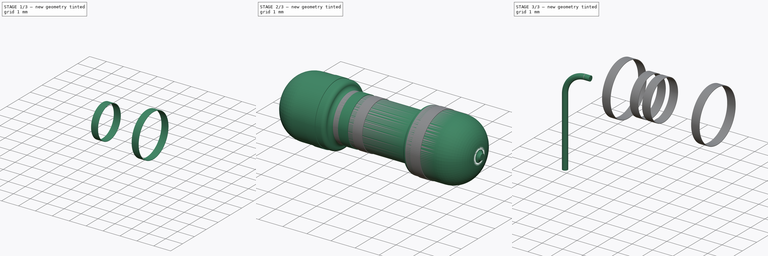
[diagram: build sequence overview — one tinted view per stage of 3, left to right]
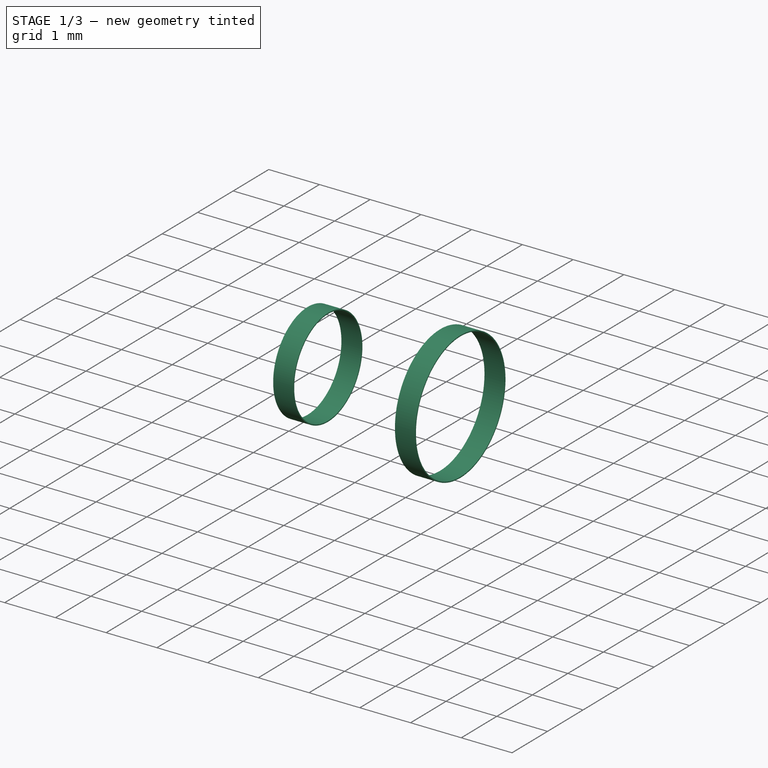
[diagram: stage 1 of 3 — iso view after this stage's code; geometry added in this stage tinted green]
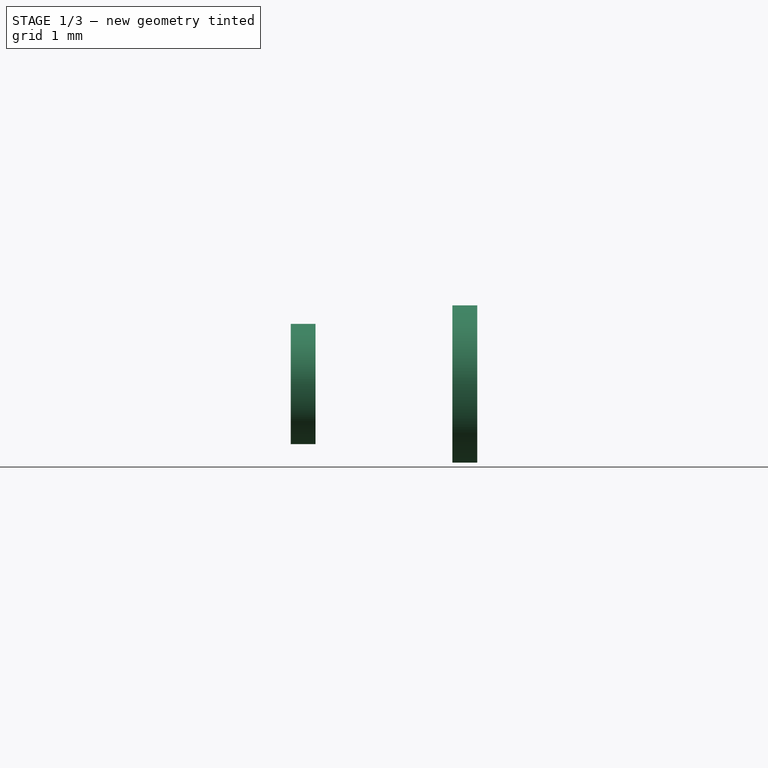
[diagram: stage 1 of 3 — front view after this stage's code; geometry added in this stage tinted green]
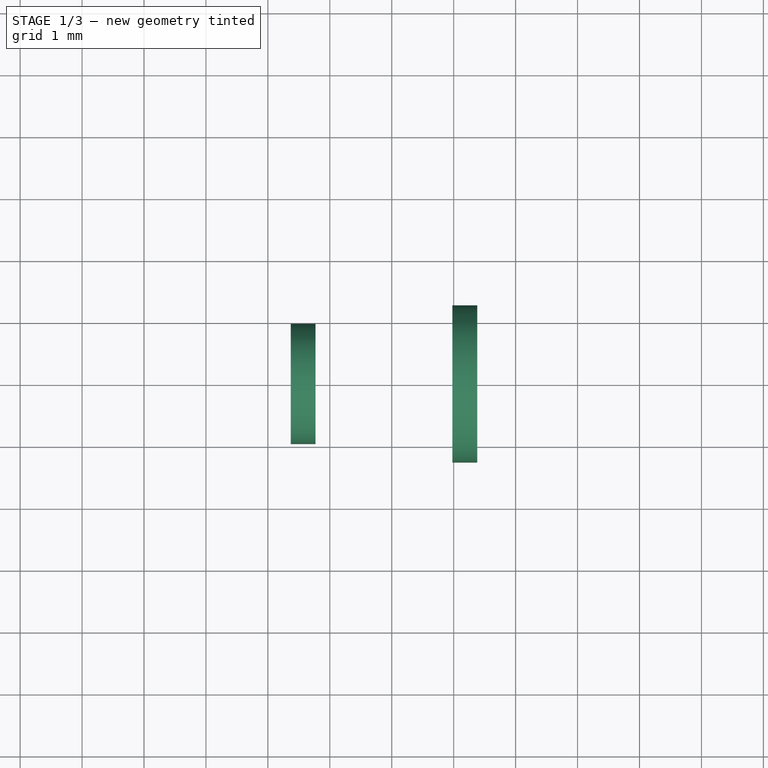
[diagram: stage 1 of 3 — top view after this stage's code; geometry added in this stage tinted green]
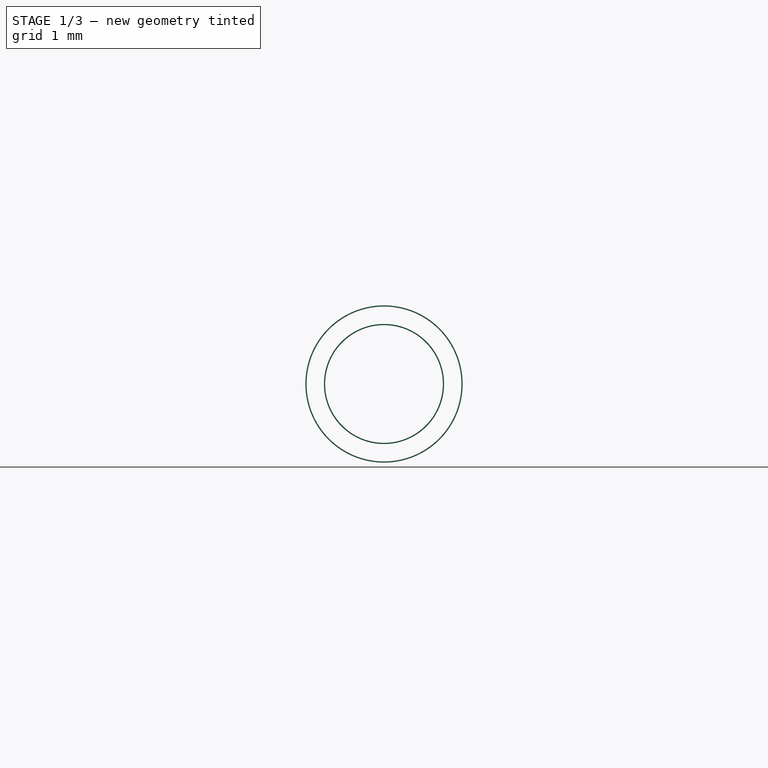
[diagram: stage 1 of 3 — right view after this stage's code; geometry added in this stage tinted green]
FCSTD DOCUMENT  (FreeCAD 0.18.1R)
Label: resistor_01
License: All rights reserved
LicenseURL: http://en.wikipedia.org/wiki/All_rights_reserved
objects: Sketcher::SketchObject×7, PartDesign::Body×7, PartDesign::Revolution×5, PartDesign::ShapeBinder×2, Spreadsheet::Sheet×1, PartDesign::Plane×1, PartDesign::AdditivePipe×1, Part::Mirroring×1
note: 30 computed .brp shape members not serialized (recipe doc carries the construction recipe); baked Part::Feature solids carry a one-line shape summary decoded from their .brp

FEATURE [PartDesign::Body] Body004
  Group = -> [Sketch004,Revolution002]
  Origin = -> Origin004
  Tip = -> Revolution002
FEATURE [Sketcher::SketchObject] Sketch005
  MapMode = 5
  Placement = pos=(0,0,0) rot=(1,0,0;1.5708rad)
  Support = -> [XZ_Plane005]
  expr: Constraints[22] = Spreadsheet.resistor_width / 2 - 3.25mm
  expr: Constraints[18] = Spreadsheet.resistor_dia / 2 - 0.15mm - 0.15mm
  sketch-geometry (8):
    g0: LineSegment StartX=-0.63 StartY=0.97 StartZ=0 EndX=-0.23 EndY=0.97 EndZ=0
    g1: LineSegment StartX=-0.23 StartY=0.97 StartZ=0 EndX=-0.23 EndY=0.95 EndZ=0
    g2: LineSegment StartX=-0.23 StartY=0.95 StartZ=0 EndX=-0.63 EndY=0.95 EndZ=0
    g3: LineSegment StartX=-0.63 StartY=0.95 StartZ=0 EndX=-0.63 EndY=0.97 EndZ=0
    g4: LineSegment [constr] StartX=-1.83 StartY=0.97 StartZ=0 EndX=-0.63 EndY=0.97 EndZ=0
    g5: LineSegment [constr] StartX=-0.63 StartY=0.97 StartZ=0 EndX=-0.63 EndY=0.95 EndZ=0
    g6: LineSegment [constr] StartX=-0.63 StartY=0.95 StartZ=0 EndX=-1.83 EndY=0.95 EndZ=0
    g7: LineSegment [constr] StartX=-1.83 StartY=0.95 StartZ=0 EndX=-1.83 EndY=0.97 EndZ=0
  constraints (23):
    c: Coincident(g0,g1)
    c: Coincident(g1,g2)
    c: Coincident(g2,g3)
    c: Coincident(g3,g0)
    c: Horizontal(g0)
    c: Horizontal(g2)
    c: Vertical(g1)
    c: Vertical(g3)
    c: DistanceY(g3,g3) = 0.02
    c: Coincident(g4,g5)
    c: Coincident(g5,g6)
    c: Coincident(g6,g7)
    c: Coincident(g7,g4)
    c: Horizontal(g4)
    c: Horizontal(g6)
    c: Vertical(g5)
    c: Vertical(g7)
    c: DistanceY(g2,g5) = 0
    c: DistanceY(g-1,g6) = 0.95
    c: Coincident(g4,g0)
    c: DistanceX(g0,g0) = 0.4
    c: DistanceX(g4,g4) = 1.2
    c: DistanceX(g4,g-1) = 1.83
FEATURE [PartDesign::Revolution] Revolution003
  Angle = 360
  Axis = (1,0,0)
  Base = (0,0,0)
  Placement = pos=(0,0,0) rot=(1,0,0;1.5708rad)
  Profile = -> Sketch005
  ReferenceAxis = -> X_Axis005
FEATURE [PartDesign::Body] Body005
  Group = -> [Sketch005,Revolution003]
  Origin = -> Origin005
  Tip = -> Revolution003
FEATURE [Sketcher::SketchObject] Sketch006
  MapMode = 5
  Placement = pos=(0,0,0) rot=(1,0,0;1.5708rad)
  Support = -> [XZ_Plane006]
  expr: Constraints[11] = Spreadsheet.resistor_width / 2 - 2.7mm
  expr: Constraints[10] = Spreadsheet.resistor_dia / 2
  sketch-geometry (4):
    g0: LineSegment StartX=1.98 StartY=1.27 StartZ=0 EndX=2.38 EndY=1.27 EndZ=0
    g1: LineSegment StartX=2.38 StartY=1.27 StartZ=0 EndX=2.38 EndY=1.25 EndZ=0
    g2: LineSegment StartX=2.38 StartY=1.25 StartZ=0 EndX=1.98 EndY=1.25 EndZ=0
    g3: LineSegment StartX=1.98 StartY=1.25 StartZ=0 EndX=1.98 EndY=1.27 EndZ=0
  constraints (12):
    c: Coincident(g0,g1)
    c: Coincident(g1,g2)
    c: Coincident(g2,g3)
    c: Coincident(g3,g0)
    c: Horizontal(g0)
    c: Horizontal(g2)
    c: Vertical(g1)
    c: Vertical(g3)
    c: DistanceX(g0,g0) = 0.4
    c: DistanceY(g3,g3) = 0.02
    c: DistanceY(g-1,g2) = 1.25
    c: DistanceX(g-1,g1) = 2.38
FEATURE [PartDesign::Revolution] Revolution004
  Angle = 360
  Axis = (1,0,0)
  Base = (0,0,0)
  Placement = pos=(0,0,0) rot=(1,0,0;1.5708rad)
  Profile = -> Sketch006
  ReferenceAxis = -> X_Axis006
  Reversed = true
FEATURE [PartDesign::Body] Body006
  Group = -> [Sketch006,Revolution004]
  Origin = -> Origin006
  Tip = -> Revolution004
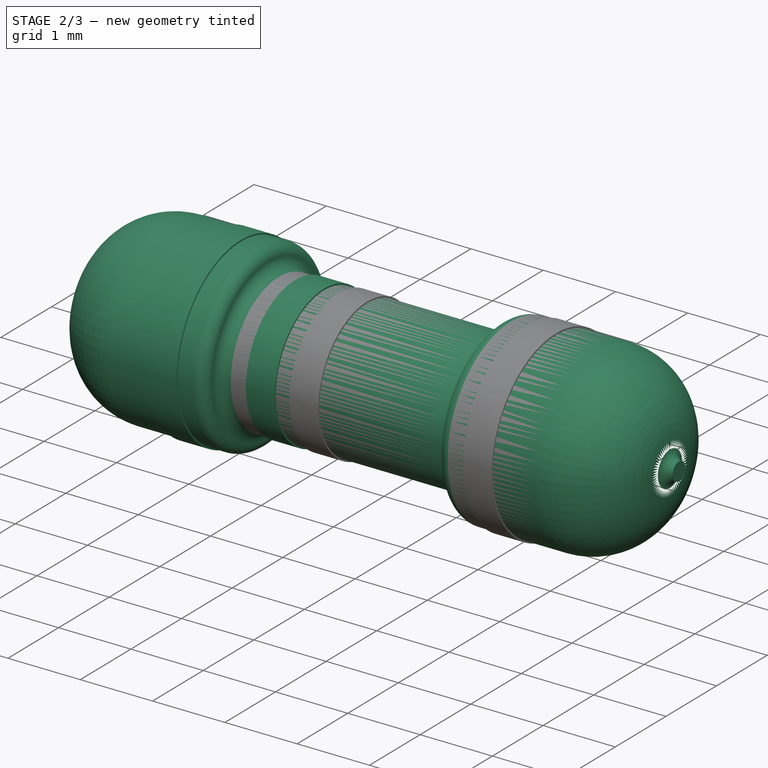
[diagram: stage 2 of 3 — iso view after this stage's code; geometry added in this stage tinted green]
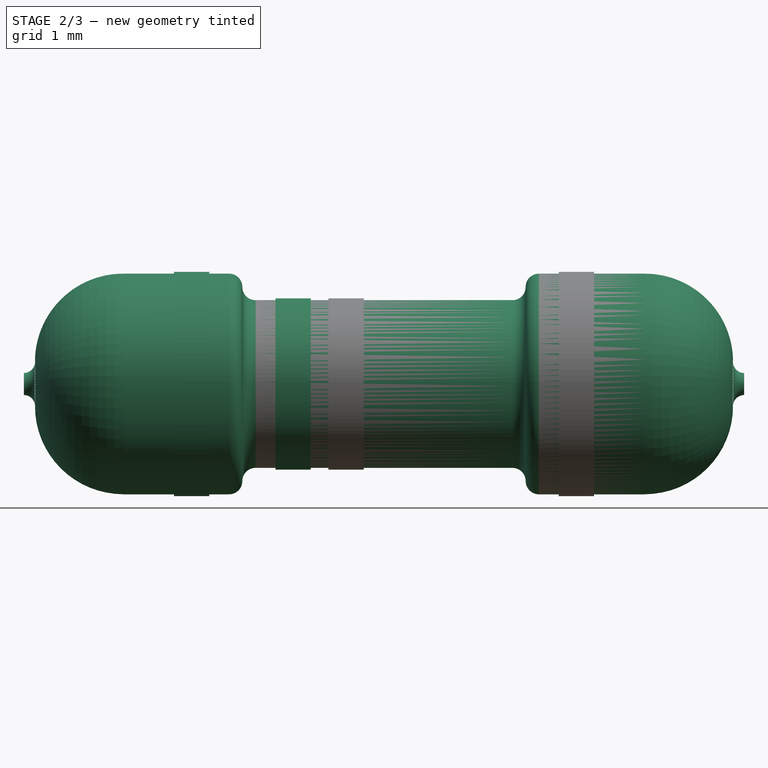
[diagram: stage 2 of 3 — front view after this stage's code; geometry added in this stage tinted green]
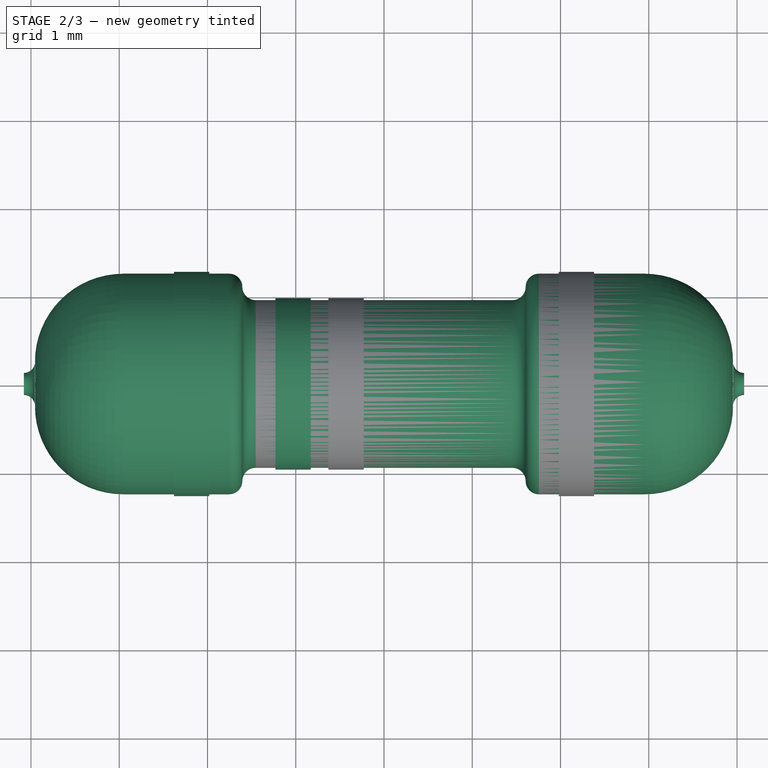
[diagram: stage 2 of 3 — top view after this stage's code; geometry added in this stage tinted green]
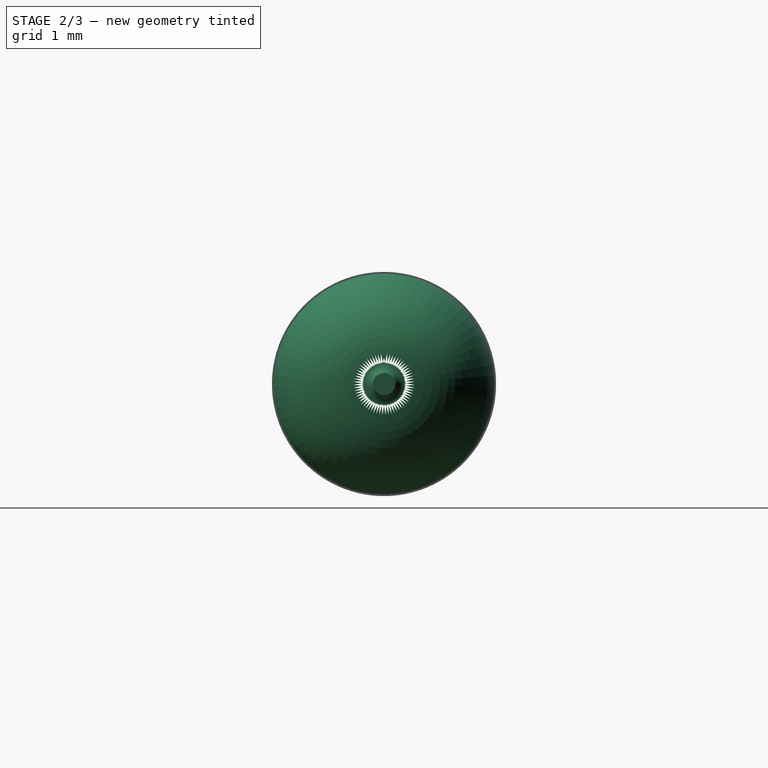
[diagram: stage 2 of 3 — right view after this stage's code; geometry added in this stage tinted green]
FEATURE [Spreadsheet::Sheet] Spreadsheet
  cells = A1=resistor_width; B1(resistor_width)==10.16mm; A2=resistor_dia; B2(resistor_dia)==2.5mm; A3=resistor_lead_dia; B3(resistor_lead_dia)==0.25mm
FEATURE [Sketcher::SketchObject] Sketch
  MapMode = 5
  Placement = pos=(0,0,0) rot=(1,0,0;1.5708rad)
  Support = -> [XZ_Plane]
  expr: Constraints[28] = Spreadsheet.resistor_dia / 2 - Spreadsheet.resistor_lead_dia / 2 - 1mm
  expr: Constraints[55] = Spreadsheet.resistor_width - 2mm
  expr: Constraints[46] = Spreadsheet.resistor_dia / 2
  expr: Constraints[33] = Spreadsheet.resistor_lead_dia / 2
  sketch-geometry (18):
    g0: LineSegment StartX=-3.955 StartY=0 StartZ=0 EndX=3.955 EndY=0 EndZ=0
    g1: ArcOfCircle CenterX=2.955 CenterY=0.25 CenterZ=0 NormalX=0 NormalY=0 NormalZ=1 AngleXU=0 Radius=1 StartAngle=3.12e-14 EndAngle=1.5708
    g2: LineSegment StartX=2.955 StartY=1.25 StartZ=0 EndX=1.755 EndY=1.25 EndZ=0
    g3: ArcOfCircle CenterX=1.755 CenterY=1.1 CenterZ=0 NormalX=0 NormalY=0 NormalZ=1 AngleXU=0 Radius=0.15 StartAngle=1.5708 EndAngle=3.14159
    g4: ArcOfCircle CenterX=1.455 CenterY=1.1 CenterZ=0 NormalX=0 NormalY=0 NormalZ=1 AngleXU=0 Radius=0.15 StartAngle=4.71239 EndAngle=6.28319
    g5: LineSegment StartX=1.455 StartY=0.95 StartZ=0 EndX=-1.455 EndY=0.95 EndZ=0
    g6: ArcOfCircle CenterX=-1.455 CenterY=1.1 CenterZ=0 NormalX=0 NormalY=0 NormalZ=1 AngleXU=0 Radius=0.15 StartAngle=3.14159 EndAngle=4.71239
    g7: ArcOfCircle CenterX=-1.755 CenterY=1.1 CenterZ=0 NormalX=0 NormalY=0 NormalZ=1 AngleXU=0 Radius=0.15 StartAngle=1.043e-13 EndAngle=1.5708
    g8: LineSegment StartX=-1.755 StartY=1.25 StartZ=0 EndX=-2.955 EndY=1.25 EndZ=0
    g9: ArcOfCircle CenterX=-2.955 CenterY=0.25 CenterZ=0 NormalX=0 NormalY=0 NormalZ=1 AngleXU=0 Radius=1 StartAngle=1.5708 EndAngle=3.14159
    g10: ArcOfCircle CenterX=-4.08 CenterY=0.25 CenterZ=0 NormalX=0 NormalY=0 NormalZ=1 AngleXU=0 Radius=0.125 StartAngle=4.71239 EndAngle=6.28319
    g11: ArcOfCircle CenterX=4.08 CenterY=0.25 CenterZ=0 NormalX=0 NormalY=0 NormalZ=1 AngleXU=0 Radius=0.125 StartAngle=3.14159 EndAngle=4.71239
    g12: LineSegment StartX=-4.08 StartY=0.125 StartZ=0 EndX=-4.08 EndY=0 EndZ=0
    g13: LineSegment StartX=4.08 StartY=0.125 StartZ=0 EndX=4.08 EndY=0 EndZ=0
    g14: LineSegment StartX=3.955 StartY=0 StartZ=0 EndX=4.08 EndY=0 EndZ=0
    g15: LineSegment StartX=-4.08 StartY=0 StartZ=0 EndX=-3.955 EndY=0 EndZ=0
    g16: LineSegment StartX=-3.955 StartY=0.25 StartZ=0 EndX=-3.955 EndY=0.25 EndZ=0
    g17: LineSegment StartX=3.955 StartY=0.25 StartZ=0 EndX=3.955 EndY=0.25 EndZ=0
  constraints (56):
    c: Coincident(g1,g2)
    c: Horizontal(g2)
    c: Tangent(g2,g3) = -1.5708
    c: Tangent(g3,g4) = 1.5708
    c: Coincident(g4,g5)
    c: Horizontal(g5)
    c: Tangent(g5,g6) = 1.5708
    c: Tangent(g6,g7) = 1.5708
    c: Coincident(g7,g8)
    c: Horizontal(g8)
    c: Tangent(g8,g9) = -1.5708
    c: Angle(g7) = 1.5708
    c: Angle(g6) = 1.5708
    c: Angle(g4) = 1.5708
    c: Angle(g3) = 1.5708
    c: Angle(g1) = 1.5708
    c: Angle(g9) = 1.5708
    c: Radius(g3) = 0.15
    c: Equal(g3,g4)
    c: Equal(g3,g6)
    c: Equal(g3,g7)
    c: Equal(g2,g8)
    c: Symmetric(g0,g0,g-2)
    c: DistanceY(g-1,g0) = 0
    c: Radius(g9) = 1
    c: Equal(g9,g1)
    c: Symmetric(g5,g4,g-2)
    c: DistanceX(g8,g8) = 1.2
    c: Radius(g10) = 0.125
    c: Equal(g10,g11)
    c: Angle(g10) = 1.5708
    c: Angle(g11) = 1.5708
    c: Symmetric(g10,g11,g-2)
    c: DistanceY(g-1,g10) = 0.125
    c: DistanceY(g10,g10) = 0
    c: DistanceY(g11,g11) = 0
    c: Coincident(g12,g10)
    c: Vertical(g12)
    c: Coincident(g13,g11)
    c: Vertical(g13)
    c: Coincident(g14,g0)
    c: Coincident(g14,g13)
    c: Horizontal(g14)
    c: Coincident(g15,g12)
    c: Coincident(g15,g0)
    c: Horizontal(g15)
    c: DistanceY(g-1,g8) = 1.25
    c: DistanceY(g1,g9) = 0
    c: Vertical(g16)
    c: Vertical(g17)
    c: Coincident(g16,g9)
    c: Coincident(g10,g16)
    c: Coincident(g17,g1)
    c: Coincident(g17,g11)
    c: DistanceX(g0,g10) = 0
    c: DistanceX(g12,g13) = 8.16
FEATURE [PartDesign::Revolution] Revolution
  Angle = 360
  Axis = (1,0,0)
  Base = (0,0,0)
  Placement = pos=(0,0,0) rot=(1,0,0;1.5708rad)
  Profile = -> Sketch
  ReferenceAxis = -> X_Axis
FEATURE [Sketcher::SketchObject] Sketch003
  MapMode = 5
  Placement = pos=(0,0,0) rot=(1,0,0;1.5708rad)
  Support = -> [XZ_Plane003]
  expr: Constraints[11] = Spreadsheet.resistor_width / 2 - 2.7mm
  expr: Constraints[10] = Spreadsheet.resistor_dia / 2
  sketch-geometry (4):
    g0: LineSegment StartX=-2.38 StartY=1.27 StartZ=0 EndX=-1.98 EndY=1.27 EndZ=0
    g1: LineSegment StartX=-1.98 StartY=1.27 StartZ=0 EndX=-1.98 EndY=1.25 EndZ=0
    g2: LineSegment StartX=-1.98 StartY=1.25 StartZ=0 EndX=-2.38 EndY=1.25 EndZ=0
    g3: LineSegment StartX=-2.38 StartY=1.25 StartZ=0 EndX=-2.38 EndY=1.27 EndZ=0
  constraints (12):
    c: Coincident(g0,g1)
    c: Coincident(g1,g2)
    c: Coincident(g2,g3)
    c: Coincident(g3,g0)
    c: Horizontal(g0)
    c: Horizontal(g2)
    c: Vertical(g1)
    c: Vertical(g3)
    c: DistanceX(g0,g0) = 0.4
    c: DistanceY(g3,g3) = 0.02
    c: DistanceY(g-1,g2) = 1.25
    c: DistanceX(g2,g-1) = 2.38
FEATURE [Sketcher::SketchObject] Sketch004
  MapMode = 5
  Placement = pos=(0,0,0) rot=(1,0,0;1.5708rad)
  Support = -> [XZ_Plane004]
  expr: Constraints[22] = Spreadsheet.resistor_width / 2 - 3.25mm
  expr: Constraints[19] = Spreadsheet.resistor_dia / 2 - 0.15mm - 0.15mm
  sketch-geometry (8):
    g0: LineSegment StartX=-1.23 StartY=0.97 StartZ=0 EndX=-0.83 EndY=0.97 EndZ=0
    g1: LineSegment StartX=-0.83 StartY=0.97 StartZ=0 EndX=-0.83 EndY=0.95 EndZ=0
    g2: LineSegment StartX=-0.83 StartY=0.95 StartZ=0 EndX=-1.23 EndY=0.95 EndZ=0
    g3: LineSegment StartX=-1.23 StartY=0.95 StartZ=0 EndX=-1.23 EndY=0.97 EndZ=0
    g4: LineSegment [constr] StartX=-1.23 StartY=0.97 StartZ=0 EndX=-1.83 EndY=0.97 EndZ=0
    g5: LineSegment [constr] StartX=-1.83 StartY=0.97 StartZ=0 EndX=-1.83 EndY=0.95 EndZ=0
    g6: LineSegment [constr] StartX=-1.83 StartY=0.95 StartZ=0 EndX=-1.23 EndY=0.95 EndZ=0
    g7: LineSegment [constr] StartX=-1.23 StartY=0.95 StartZ=0 EndX=-1.23 EndY=0.97 EndZ=0
  constraints (23):
    c: Coincident(g0,g1)
    c: Coincident(g1,g2)
    c: Coincident(g2,g3)
    c: Coincident(g3,g0)
    c: Horizontal(g0)
    c: Horizontal(g2)
    c: Vertical(g1)
    c: Vertical(g3)
    c: DistanceX(g0,g0) = 0.4
    c: DistanceY(g3,g3) = 0.02
    c: Coincident(g4,g5)
    c: Coincident(g5,g6)
    c: Coincident(g6,g7)
    c: Coincident(g7,g4)
    c: Horizontal(g4)
    c: Horizontal(g6)
    c: Vertical(g5)
    c: Vertical(g7)
    c: DistanceY(g2,g5) = 0
    c: DistanceY(g-1,g6) = 0.95
    c: Coincident(g4,g0)
    c: DistanceX(g4,g4) = 0.6
    c: DistanceX(g4,g-1) = 1.83
FEATURE [PartDesign::Revolution] Revolution001
  Angle = 360
  Axis = (1,0,0)
  Base = (0,0,0)
  Placement = pos=(0,0,0) rot=(1,0,0;1.5708rad)
  Profile = -> Sketch003
  ReferenceAxis = -> X_Axis003
FEATURE [PartDesign::Body] Body003
  Group = -> [Sketch003,Revolution001]
  Origin = -> Origin003
  Tip = -> Revolution001
FEATURE [PartDesign::Revolution] Revolution002
  Angle = 360
  Axis = (1,0,0)
  Base = (0,0,0)
  Placement = pos=(0,0,0) rot=(1,0,0;1.5708rad)
  Profile = -> Sketch004
  ReferenceAxis = -> X_Axis004
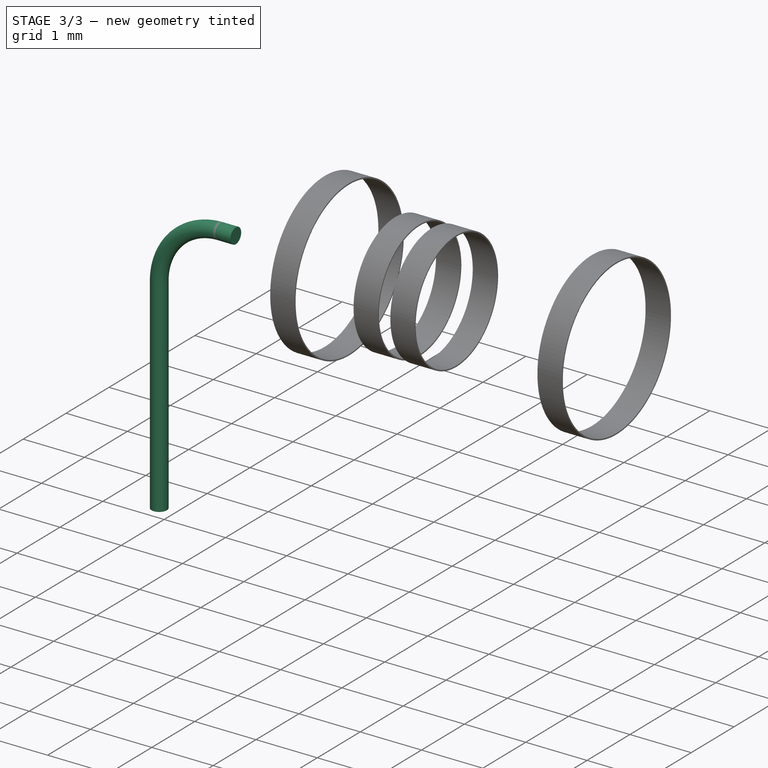
[diagram: stage 3 of 3 — iso view after this stage's code; geometry added in this stage tinted green]
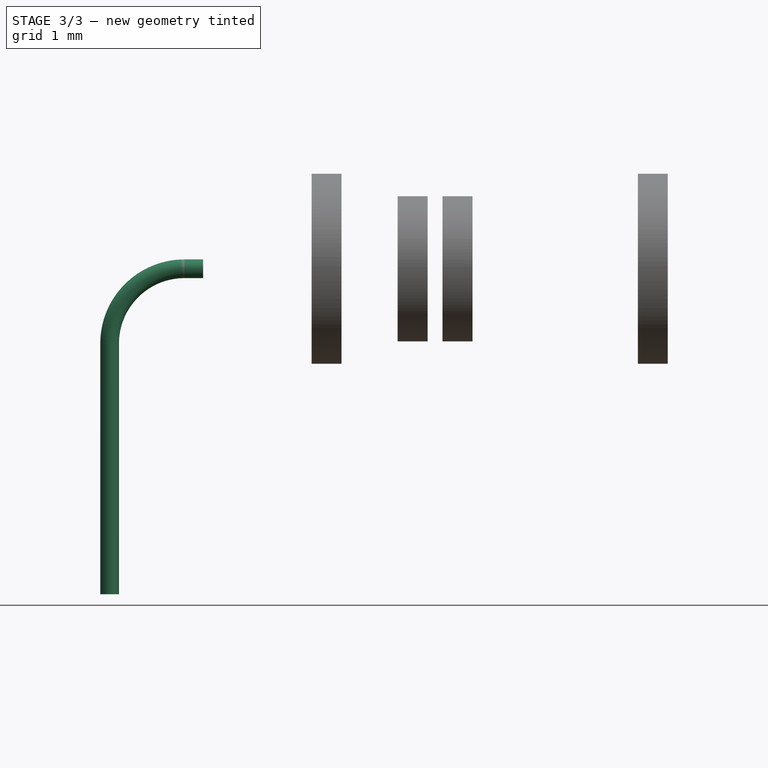
[diagram: stage 3 of 3 — front view after this stage's code; geometry added in this stage tinted green]
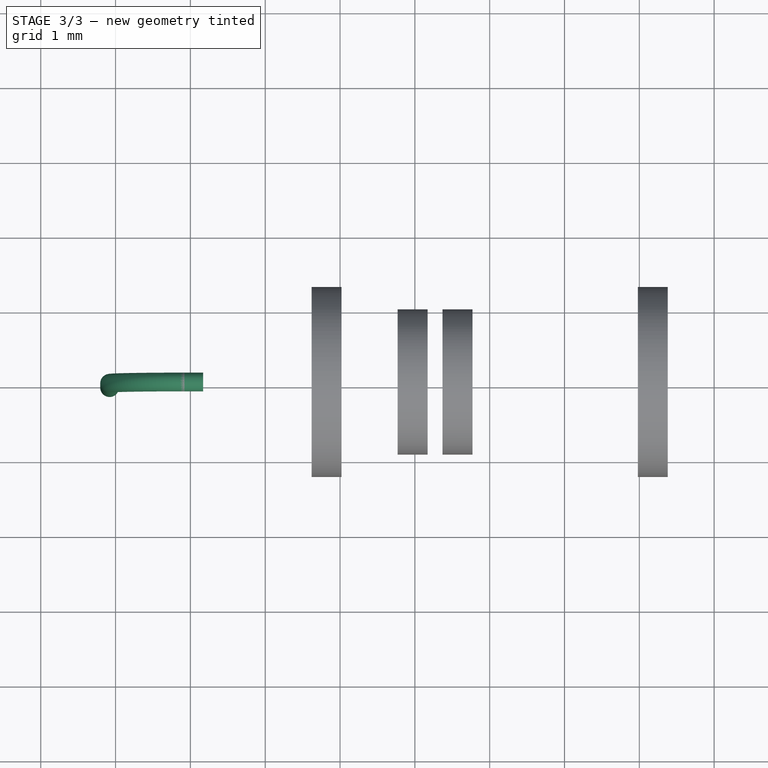
[diagram: stage 3 of 3 — top view after this stage's code; geometry added in this stage tinted green]
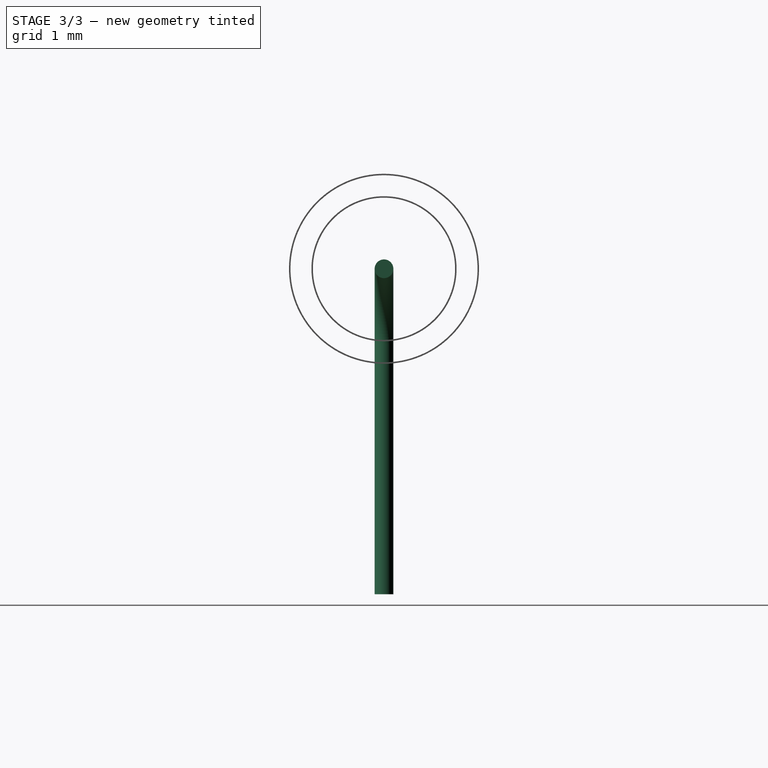
[diagram: stage 3 of 3 — right view after this stage's code; geometry added in this stage tinted green]
FEATURE [PartDesign::Body] Body
  Group = -> [Sketch,Revolution]
  Origin = -> Origin
  Tip = -> Revolution
FEATURE [PartDesign::ShapeBinder] ReferenceRevolution
  Placement = pos=(0,0,0) rot=(1,0,0;1.5708rad)
  Support = -> [Revolution]
  TraceSupport = false
FEATURE [PartDesign::Plane] DatumPlane
  Length = 24
  MapMode = 5
  Placement = pos=(3.955,0,0) rot=(0.707107,0,-0.707107;3.14159rad)
  ResizeMode = 0
  Support = -> [ReferenceRevolution]
  Width = 24
FEATURE [PartDesign::ShapeBinder] ReferenceRevolution001
  Placement = pos=(0,0,0) rot=(1,0,0;1.5708rad)
  Support = -> [Revolution]
  TraceSupport = false
FEATURE [Sketcher::SketchObject] Sketch001
  MapMode = 5
  Placement = pos=(3.955,0,0) rot=(0.707107,0,-0.707107;3.14159rad)
  Support = -> [ReferenceRevolution001]
  expr: Constraints[1] = Spreadsheet.resistor_lead_dia / 2
  sketch-geometry (1):
    g0: Circle CenterX=0 CenterY=0 CenterZ=0 NormalX=0 NormalY=0 NormalZ=1 AngleXU=0 Radius=0.125
  constraints (2):
    c: Coincident(g0,g-1)
    c: Radius(g0) = 0.125
FEATURE [PartDesign::Body] Body001
  Group = -> [DatumPlane,ReferenceRevolution,ReferenceRevolution001,Sketch001]
  Origin = -> Origin001
FEATURE [Sketcher::SketchObject] Sketch002
  MapMode = 5
  Placement = pos=(0,0,0) rot=(1,0,0;1.5708rad)
  Support = -> [XZ_Plane002]
  expr: Constraints[9] = Spreadsheet.resistor_width / 2
  expr: Constraints[7] = Spreadsheet.resistor_dia / 2 + 2.1mm
  sketch-geometry (3):
    g0: LineSegment StartX=3.83 StartY=0 StartZ=0 EndX=4.08 EndY=0 EndZ=0
    g1: ArcOfCircle CenterX=4.08 CenterY=-1 CenterZ=0 NormalX=0 NormalY=0 NormalZ=1 AngleXU=0 Radius=1 StartAngle=0 EndAngle=1.5708
    g2: LineSegment StartX=5.08 StartY=-1 StartZ=0 EndX=5.08 EndY=-4.35 EndZ=0
  constraints (10):
    c: Horizontal(g0)
    c: Tangent(g0,g1) = 1.5708
    c: Coincident(g1,g2)
    c: Vertical(g2)
    c: Radius(g1) = 1
    c: Angle(g1) = 1.5708
    c: DistanceX(g0,g0) = 0.25
    c: DistanceY(g2,g2) = 3.35
    c: DistanceY(g-1,g0) = 0
    c: DistanceX(g-1,g2) = 5.08
FEATURE [PartDesign::AdditivePipe] AdditivePipe
  AuxilleryCurvelinear = true
  AuxillerySpineTangent = false
  Binormal = (0,0,0)
  Mode = 0
  Placement = pos=(0,0,0) rot=(1,0,0;1.5708rad)
  Profile = -> Sketch001
  Spine = -> Sketch002 [Edge1,Edge2,Edge3]
  SpineTangent = false
  Transformation = 0
  Transition = 0
FEATURE [PartDesign::Body] Body002
  Group = -> [Sketch002,AdditivePipe]
  Origin = -> Origin002
  Tip = -> AdditivePipe
FEATURE [Part::Mirroring] mirror  label="Mirror of Body002"
  Base = (0,0,0)
  Normal = (1,0,0)
  Source = -> Body002
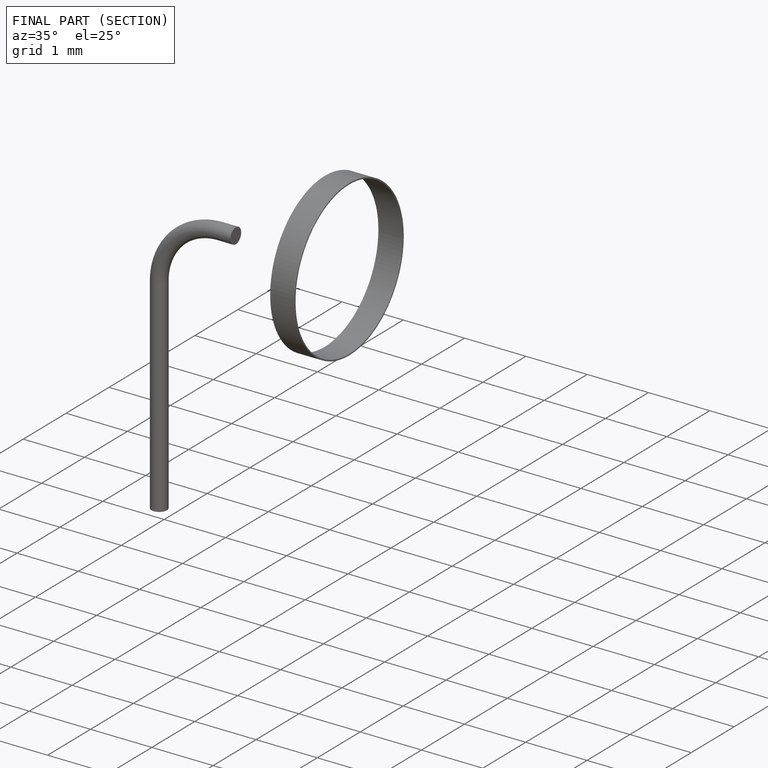
[diagram: finished part — half-section view (interior)]
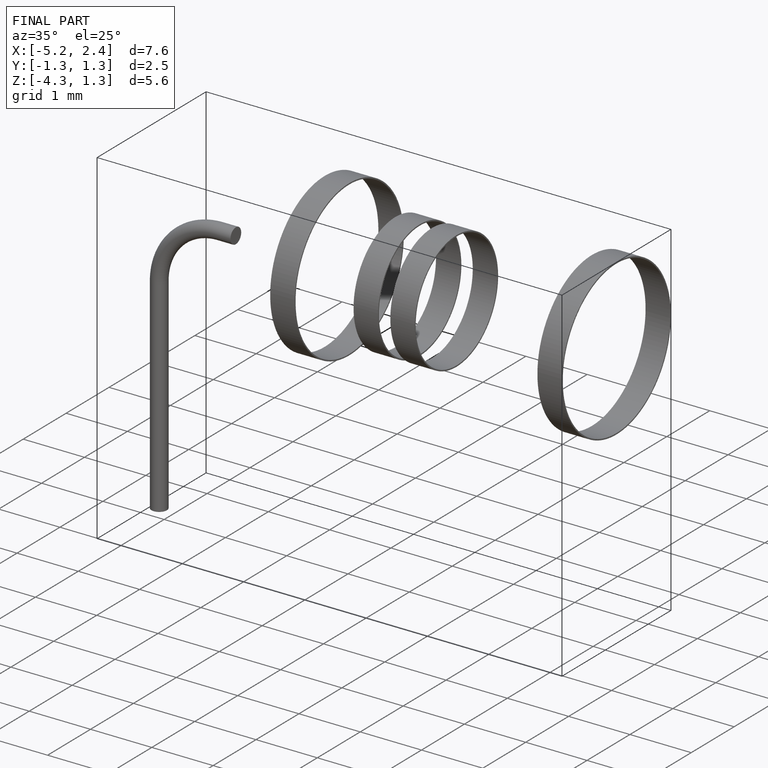
[diagram: finished part — iso view with bounding-box wireframe]
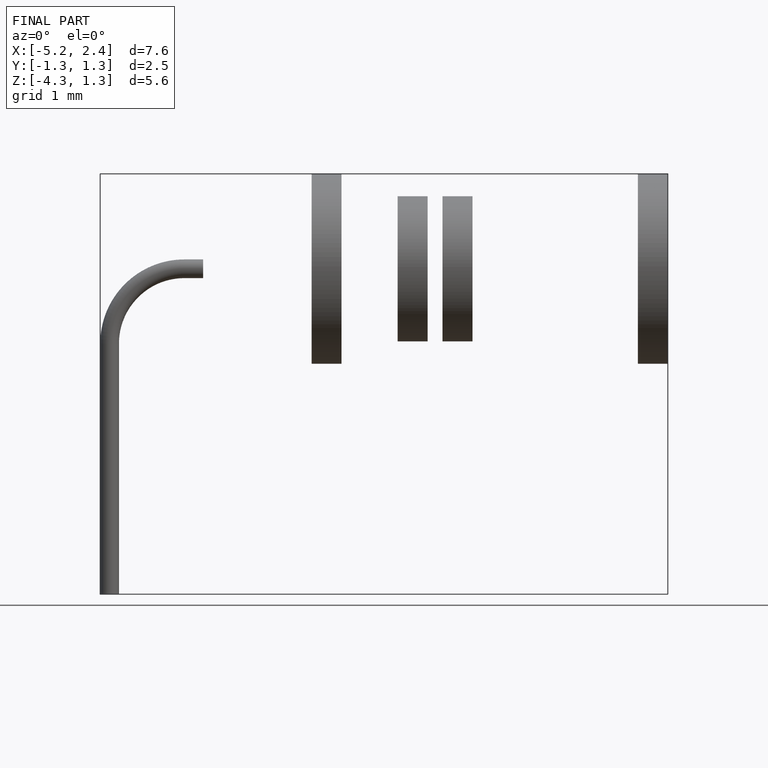
[diagram: finished part — front view with bounding-box wireframe]
